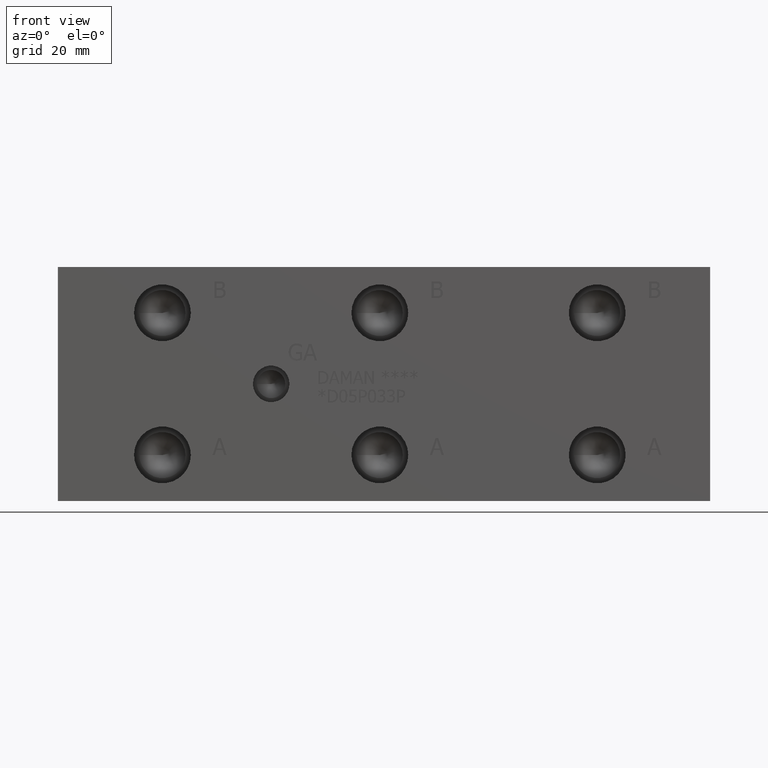
[diagram: clean part render]
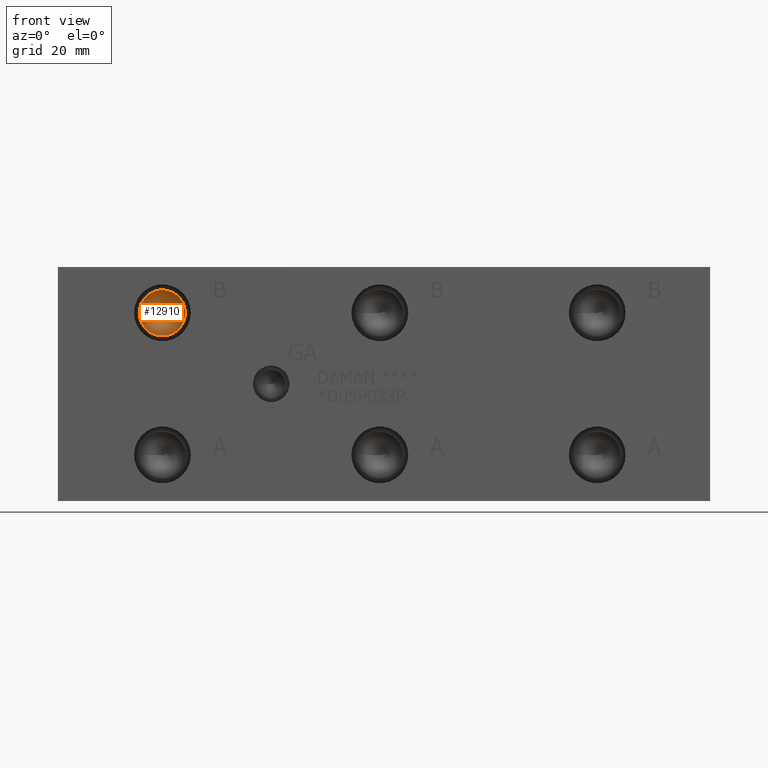
[diagram: same view with one face highlighted and labeled with its STEP entity id]
A machine part, front view. The second image highlights one B-rep face of the part: STEP entity #12910.
In plain terms, the highlighted conical surface has half-angle 60 deg.
Its self-contained STEP definition (entity closure, byte-faithful):
#91=CONICAL_SURFACE('',#13496,4.3688,1.0471975511966);
#383=CIRCLE('',#13497,8.7376);
#384=CIRCLE('',#13498,8.7376);
#1581=FACE_OUTER_BOUND('',#2323,.T.);
#2323=EDGE_LOOP('',(#10958,#10959,#10960,#10961));
#3576=LINE('',#21912,#4769);
#4769=VECTOR('',#15823,4.3688);
#5903=VERTEX_POINT('',#21908);
#5904=VERTEX_POINT('',#21909);
#5905=VERTEX_POINT('',#21911);
#7645=EDGE_CURVE('',#5903,#5904,#383,.T.);
#7646=EDGE_CURVE('',#5904,#5905,#3576,.T.);
#7647=EDGE_CURVE('',#5904,#5903,#384,.T.);
#10958=ORIENTED_EDGE('',*,*,#7645,.T.);
#10959=ORIENTED_EDGE('',*,*,#7646,.T.);
#10960=ORIENTED_EDGE('',*,*,#7646,.F.);
#10961=ORIENTED_EDGE('',*,*,#7647,.T.);
#12910=ADVANCED_FACE('',(#1581),#91,.F.);
#13496=AXIS2_PLACEMENT_3D('',#21907,#15819,#15820);
#13497=AXIS2_PLACEMENT_3D('',#21910,#15821,#15822);
#13498=AXIS2_PLACEMENT_3D('',#21913,#15824,#15825);
#15819=DIRECTION('center_axis',(0.,-1.,0.));
#15820=DIRECTION('ref_axis',(1.,0.,0.));
#15821=DIRECTION('center_axis',(0.,-1.,0.));
#15822=DIRECTION('ref_axis',(1.,0.,0.));
#15823=DIRECTION('',(0.866025403784439,0.5,1.06057523872491E-16));
#15824=DIRECTION('center_axis',(0.,-1.,0.));
#15825=DIRECTION('ref_axis',(1.,0.,0.));
#21907=CARTESIAN_POINT('Origin',(39.6748,18.3937978560356,71.4248));
#21908=CARTESIAN_POINT('',(48.4124,15.87147,71.4248));
#21909=CARTESIAN_POINT('',(30.9372,15.87147,71.4248));
#21910=CARTESIAN_POINT('Origin',(39.6748,15.87147,71.4248));
#21911=CARTESIAN_POINT('',(39.6748,20.9161257120713,71.4248));
#21912=CARTESIAN_POINT('',(35.306,18.3937978560356,71.4248));
#21913=CARTESIAN_POINT('Origin',(39.6748,15.87147,71.4248));